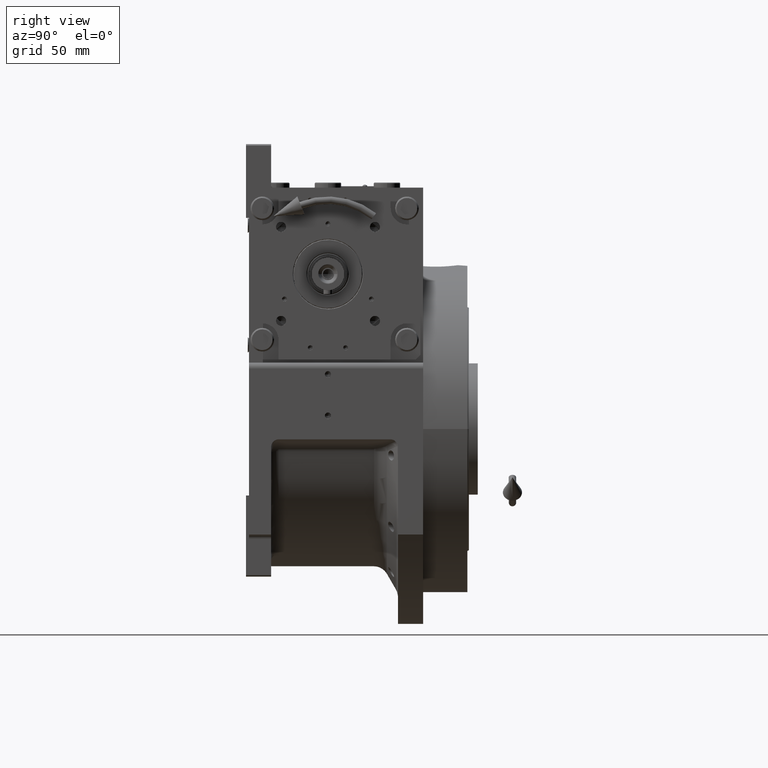
[diagram: clean part render]
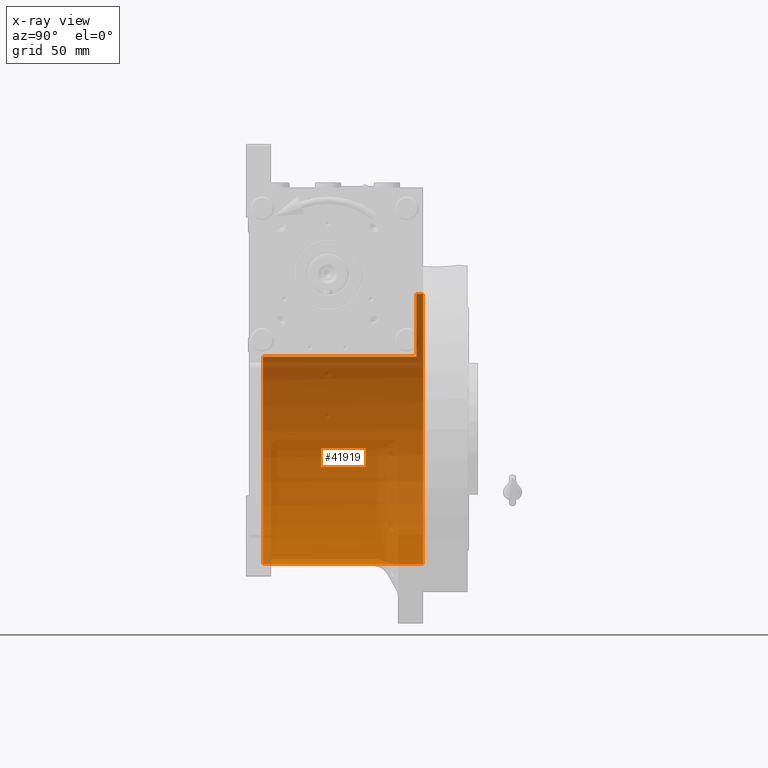
[diagram: x-ray — body ghosted, one internal face saturated and labeled with its STEP entity id]
A machine part, right view, then the same camera in x-ray: the body is ghosted and one INTERNAL B-rep face — a face not visible from any outside direction — is saturated and labeled: STEP entity #41919.
In plain terms, the highlighted cylindrical surface (partial cylindrical patch) has radius 91.5 mm, axis along (0, -1, 0).
Its self-contained STEP definition (entity closure, byte-faithful):
#127 = CIRCLE ( 'NONE', #50349, 91.50000000000000000 ) ;
#1226 = VERTEX_POINT ( 'NONE', #88889 ) ;
#1245 = CARTESIAN_POINT ( 'NONE',  ( 0.000000000000000000, 69.00000000000004263, 0.000000000000000000 ) ) ;
#3899 = CARTESIAN_POINT ( 'NONE',  ( 1.120551821219827868E-14, 60.00000000000000000, 91.50000000000000000 ) ) ;
#5133 = DIRECTION ( 'NONE',  ( 0.000000000000000000, -1.000000000000000000, 0.000000000000000000 ) ) ;
#6577 = DIRECTION ( 'NONE',  ( 0.000000000000000000, 0.000000000000000000, 1.000000000000000000 ) ) ;
#6854 = CYLINDRICAL_SURFACE ( 'NONE', #75113, 91.50000000000000000 ) ;
#10690 = CARTESIAN_POINT ( 'NONE',  ( 1.120551821219827868E-14, 64.50000000000000000, 91.50000000000000000 ) ) ;
#12043 = CARTESIAN_POINT ( 'NONE',  ( 0.000000000000000000, 64.50000000000000000, 0.000000000000000000 ) ) ;
#14250 = LINE ( 'NONE', #68105, #66192 ) ;
#15270 = VECTOR ( 'NONE', #90263, 1000.000000000000000 ) ;
#18670 = CARTESIAN_POINT ( 'NONE',  ( -77.27386362800812947, 69.00000000000004263, 48.99999999999998579 ) ) ;
#21922 = VERTEX_POINT ( 'NONE', #10690 ) ;
#22025 = AXIS2_PLACEMENT_3D ( 'NONE', #76150, #38576, #6577 ) ;
#23098 = DIRECTION ( 'NONE',  ( 0.000000000000000000, -1.000000000000000000, 0.000000000000000000 ) ) ;
#23368 = VERTEX_POINT ( 'NONE', #3899 ) ;
#32727 = ORIENTED_EDGE ( 'NONE', *, *, #50617, .F. ) ;
#34239 = ORIENTED_EDGE ( 'NONE', *, *, #62366, .F. ) ;
#37112 = DIRECTION ( 'NONE',  ( 1.776356839400250465E-15, 0.000000000000000000, -1.000000000000000000 ) ) ;
#38576 = DIRECTION ( 'NONE',  ( 0.000000000000000000, 1.000000000000000000, 0.000000000000000000 ) ) ;
#39971 = ORIENTED_EDGE ( 'NONE', *, *, #78624, .T. ) ;
#41919 = ADVANCED_FACE ( 'NONE', ( #76910 ), #6854, .F. ) ;
#46740 = ORIENTED_EDGE ( 'NONE', *, *, #55011, .F. ) ;
#47078 = VERTEX_POINT ( 'NONE', #93942 ) ;
#50223 = CARTESIAN_POINT ( 'NONE',  ( 0.000000000000000000, 69.00000000000004263, -91.50000000000000000 ) ) ;
#50349 = AXIS2_PLACEMENT_3D ( 'NONE', #12043, #81104, #88716 ) ;
#50617 = EDGE_CURVE ( 'NONE', #47078, #23368, #87820, .T. ) ;
#53640 = EDGE_CURVE ( 'NONE', #1226, #53833, #97854, .T. ) ;
#53833 = VERTEX_POINT ( 'NONE', #64266 ) ;
#55011 = EDGE_CURVE ( 'NONE', #53833, #87871, #90053, .T. ) ;
#59465 = DIRECTION ( 'NONE',  ( 0.000000000000000000, 1.000000000000000000, 0.000000000000000000 ) ) ;
#62366 = EDGE_CURVE ( 'NONE', #21922, #1226, #127, .T. ) ;
#64266 = CARTESIAN_POINT ( 'NONE',  ( 0.000000000000000000, -44.00000000000000000, -91.50000000000000000 ) ) ;
#64904 = DIRECTION ( 'NONE',  ( -0.000000000000000000, 1.000000000000000000, -0.000000000000000000 ) ) ;
#66192 = VECTOR ( 'NONE', #5133, 1000.000000000000000 ) ;
#68105 = CARTESIAN_POINT ( 'NONE',  ( 1.120551821219827868E-14, 69.00000000000004263, 91.50000000000000000 ) ) ;
#69295 = VECTOR ( 'NONE', #64904, 1000.000000000000000 ) ;
#75026 = LINE ( 'NONE', #18670, #69295 ) ;
#75113 = AXIS2_PLACEMENT_3D ( 'NONE', #1245, #23098, #92124 ) ;
#76150 = CARTESIAN_POINT ( 'NONE',  ( 0.000000000000000000, -44.00000000000000000, 0.000000000000000000 ) ) ;
#76910 = FACE_OUTER_BOUND ( 'NONE', #78735, .T. ) ;
#78084 = AXIS2_PLACEMENT_3D ( 'NONE', #83280, #59465, #37112 ) ;
#78624 = EDGE_CURVE ( 'NONE', #21922, #23368, #14250, .T. ) ;
#78735 = EDGE_LOOP ( 'NONE', ( #34239, #39971, #32727, #93870, #46740, #86698 ) ) ;
#81104 = DIRECTION ( 'NONE',  ( -0.000000000000000000, -1.000000000000000000, -0.000000000000000000 ) ) ;
#83280 = CARTESIAN_POINT ( 'NONE',  ( 0.000000000000000000, 60.00000000000000000, 0.000000000000000000 ) ) ;
#84473 = CARTESIAN_POINT ( 'NONE',  ( -77.27386362800814368, -44.00000000000000000, 49.00000000000000000 ) ) ;
#86698 = ORIENTED_EDGE ( 'NONE', *, *, #53640, .F. ) ;
#87820 = CIRCLE ( 'NONE', #78084, 91.50000000000000000 ) ;
#87871 = VERTEX_POINT ( 'NONE', #84473 ) ;
#88716 = DIRECTION ( 'NONE',  ( 0.000000000000000000, 0.000000000000000000, 1.000000000000000000 ) ) ;
#88889 = CARTESIAN_POINT ( 'NONE',  ( 0.000000000000000000, 64.50000000000000000, -91.50000000000000000 ) ) ;
#90053 = CIRCLE ( 'NONE', #22025, 91.50000000000000000 ) ;
#90263 = DIRECTION ( 'NONE',  ( 0.000000000000000000, -1.000000000000000000, 0.000000000000000000 ) ) ;
#92124 = DIRECTION ( 'NONE',  ( 0.000000000000000000, 0.000000000000000000, -1.000000000000000000 ) ) ;
#93870 = ORIENTED_EDGE ( 'NONE', *, *, #98460, .F. ) ;
#93942 = CARTESIAN_POINT ( 'NONE',  ( -77.27386362800814368, 60.00000000000000000, 48.99999999999998579 ) ) ;
#97854 = LINE ( 'NONE', #50223, #15270 ) ;
#98460 = EDGE_CURVE ( 'NONE', #87871, #47078, #75026, .T. ) ;